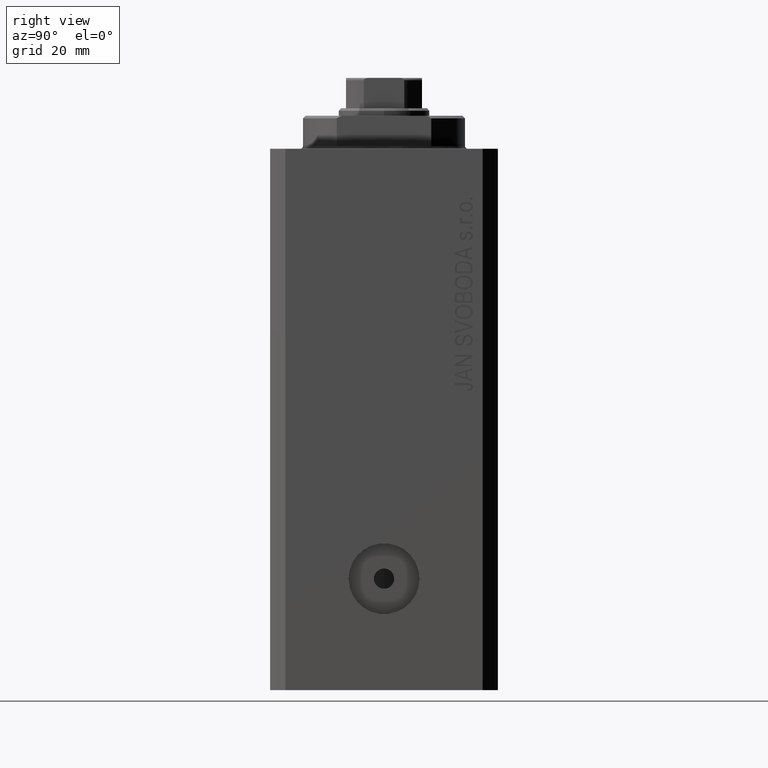
[diagram: clean part render]
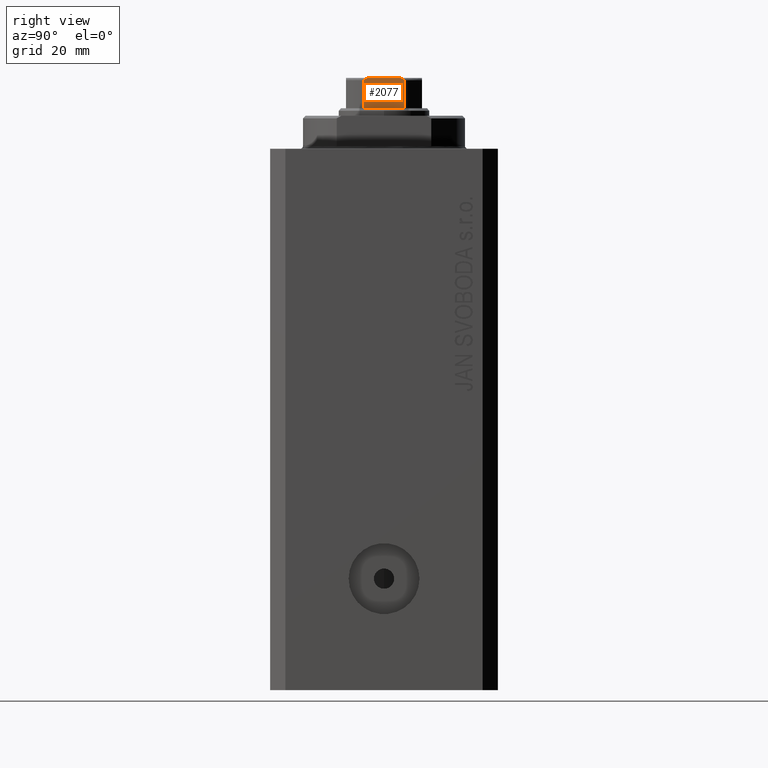
[diagram: same view with one face highlighted and labeled with its STEP entity id]
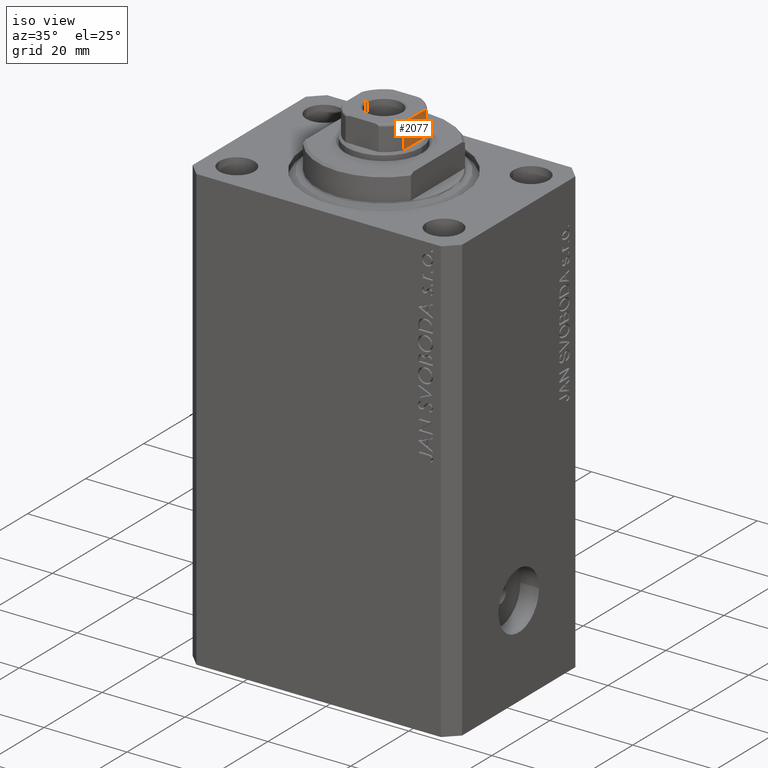
[diagram: same view with one face highlighted and labeled with its STEP entity id]
A machine part, right view. The second image highlights one B-rep face of the part: STEP entity #2077.
A second angle (iso view) of the same face is appended — the face is thin or edge-on in the first view.
In plain terms, the highlighted planar face has unit normal (-1, 0, 0).
Its self-contained STEP definition (entity closure, byte-faithful):
#128 = CARTESIAN_POINT ( 'NONE',  ( 7.500000000000000888, -2.783882181415009427, 114.1000000000000085 ) ) ;
#835 = CARTESIAN_POINT ( 'NONE',  ( 7.500000000000000888, 3.708875323752952369, 113.9493035205546221 ) ) ;
#2077 = ADVANCED_FACE ( 'NONE', ( #14429 ), #28177, .F. ) ;
#2808 = EDGE_CURVE ( 'NONE', #3693, #40312, #28294, .T. ) ;
#3693 = VERTEX_POINT ( 'NONE', #31661 ) ;
#5098 = CARTESIAN_POINT ( 'NONE',  ( 7.500000000000001776, -3.020030562295400234, 114.1000000000000227 ) ) ;
#5320 = CARTESIAN_POINT ( 'NONE',  ( 7.500000000000000000, -3.710689790367151630, 113.9481211817342512 ) ) ;
#6542 = CARTESIAN_POINT ( 'NONE',  ( 7.500000000000001776, 7.500000000000000000, 108.1000000000000085 ) ) ;
#6856 = CARTESIAN_POINT ( 'NONE',  ( 7.500000000000001776, 3.999999999999998224, 113.6000000000000085 ) ) ;
#8239 = CARTESIAN_POINT ( 'NONE',  ( 7.500000000000000888, -2.783882181415009427, 114.1000000000000085 ) ) ;
#8256 = LINE ( 'NONE', #42722, #38572 ) ;
#10987 = CARTESIAN_POINT ( 'NONE',  ( 7.500000000000000888, 3.999999999999998224, 113.6602639680043438 ) ) ;
#11436 = CARTESIAN_POINT ( 'NONE',  ( 7.500000000000001776, 3.254991323038174844, 114.0826902844315640 ) ) ;
#11583 = EDGE_LOOP ( 'NONE', ( #33132, #39877, #38199, #34753, #17020, #14203 ) ) ;
#11624 = CARTESIAN_POINT ( 'NONE',  ( 7.500000000000000000, -4.000000000000002665, 113.6000000000000085 ) ) ;
#13540 = DIRECTION ( 'NONE',  ( -1.000000000000000000, 1.156482317317871478E-16, 0.000000000000000000 ) ) ;
#13832 = VECTOR ( 'NONE', #44403, 1000.000000000000000 ) ;
#14203 = ORIENTED_EDGE ( 'NONE', *, *, #17718, .T. ) ;
#14344 = VERTEX_POINT ( 'NONE', #37015 ) ;
#14429 = FACE_OUTER_BOUND ( 'NONE', #11583, .T. ) ;
#14599 = CARTESIAN_POINT ( 'NONE',  ( 7.500000000000000888, 3.597188386589924569, 113.9905284339323970 ) ) ;
#16933 = LINE ( 'NONE', #24122, #13832 ) ;
#17020 = ORIENTED_EDGE ( 'NONE', *, *, #26875, .T. ) ;
#17718 = EDGE_CURVE ( 'NONE', #25666, #14344, #22792, .T. ) ;
#17971 = CARTESIAN_POINT ( 'NONE',  ( 7.500000000000000888, 3.976018255615929142, 113.7172619930099131 ) ) ;
#19060 = CARTESIAN_POINT ( 'NONE',  ( 7.499999999999999112, -3.975735230428941946, 113.7177304131977849 ) ) ;
#20307 = DIRECTION ( 'NONE',  ( -1.156482317317871478E-16, -1.000000000000000000, 0.000000000000000000 ) ) ;
#20945 = DIRECTION ( 'NONE',  ( 1.156482317317871478E-16, 1.000000000000000000, -0.000000000000000000 ) ) ;
#21077 = DIRECTION ( 'NONE',  ( -0.000000000000000000, -0.000000000000000000, 1.000000000000000000 ) ) ;
#22680 = EDGE_CURVE ( 'NONE', #24407, #40312, #31692, .T. ) ;
#22792 = B_SPLINE_CURVE_WITH_KNOTS ( 'NONE', 3,
 ( #42300, #10987, #17971, #31713, #24742, #835, #14599, #11436, #38474, #25184 ),
 .UNSPECIFIED., .F., .F.,
 ( 4, 2, 2, 2, 4 ),
 ( 0.000000000000000000, 0.0001779688448868775293, 0.0003559376897737542996, 0.0007118753795475305001, 0.001423750759095082901 ),
 .UNSPECIFIED. ) ;
#22957 = CARTESIAN_POINT ( 'NONE',  ( 7.500000000000000000, -4.000000000000002665, 113.6000000000000085 ) ) ;
#22971 = AXIS2_PLACEMENT_3D ( 'NONE', #38527, #13540, #20307 ) ;
#23489 = VERTEX_POINT ( 'NONE', #28360 ) ;
#24122 = CARTESIAN_POINT ( 'NONE',  ( 7.500000000000001776, 7.500000000000000000, 114.1000000000000085 ) ) ;
#24326 = LINE ( 'NONE', #6542, #39734 ) ;
#24407 = VERTEX_POINT ( 'NONE', #128 ) ;
#24742 = CARTESIAN_POINT ( 'NONE',  ( 7.500000000000000888, 3.858352854028593182, 113.8511795160315643 ) ) ;
#25184 = CARTESIAN_POINT ( 'NONE',  ( 7.500000000000000888, 2.783882181415007206, 114.1000000000000085 ) ) ;
#25666 = VERTEX_POINT ( 'NONE', #6856 ) ;
#26875 = EDGE_CURVE ( 'NONE', #23489, #25666, #8256, .T. ) ;
#28177 = PLANE ( 'NONE',  #22971 ) ;
#28294 = LINE ( 'NONE', #38640, #41668 ) ;
#28360 = CARTESIAN_POINT ( 'NONE',  ( 7.500000000000001776, 3.999999999999998224, 108.0999999999999943 ) ) ;
#31661 = CARTESIAN_POINT ( 'NONE',  ( 7.500000000000000000, -4.000000000000002665, 108.0999999999999943 ) ) ;
#31692 = B_SPLINE_CURVE_WITH_KNOTS ( 'NONE', 3,
 ( #8239, #5098, #39780, #32802, #5320, #39332, #42478, #19060, #39551, #11624 ),
 .UNSPECIFIED., .F., .F.,
 ( 4, 2, 2, 2, 4 ),
 ( 4.336808689942017736E-19, 0.0007049202178653984040, 0.001057380326798102593, 0.001233610381264454254, 0.001409840435730806999 ),
 .UNSPECIFIED. ) ;
#31713 = CARTESIAN_POINT ( 'NONE',  ( 7.500000000000001776, 3.904208668232356683, 113.8127813453749582 ) ) ;
#32802 = CARTESIAN_POINT ( 'NONE',  ( 7.499999999999999112, -3.598393151503776366, 113.9901219192740882 ) ) ;
#33132 = ORIENTED_EDGE ( 'NONE', *, *, #40913, .F. ) ;
#34753 = ORIENTED_EDGE ( 'NONE', *, *, #40085, .T. ) ;
#36418 = DIRECTION ( 'NONE',  ( -0.000000000000000000, -0.000000000000000000, 1.000000000000000000 ) ) ;
#37015 = CARTESIAN_POINT ( 'NONE',  ( 7.500000000000000888, 2.783882181415007206, 114.1000000000000085 ) ) ;
#38199 = ORIENTED_EDGE ( 'NONE', *, *, #2808, .F. ) ;
#38474 = CARTESIAN_POINT ( 'NONE',  ( 7.500000000000001776, 3.020011215871893029, 114.0999999999999943 ) ) ;
#38527 = CARTESIAN_POINT ( 'NONE',  ( 7.500000000000001776, 7.500000000000000000, 114.1000000000000085 ) ) ;
#38572 = VECTOR ( 'NONE', #36418, 1000.000000000000000 ) ;
#38640 = CARTESIAN_POINT ( 'NONE',  ( 7.500000000000000000, -4.000000000000002665, -0.001000000000001000089 ) ) ;
#39332 = CARTESIAN_POINT ( 'NONE',  ( 7.500000000000002665, -3.857502111569842018, 113.8517335996921389 ) ) ;
#39551 = CARTESIAN_POINT ( 'NONE',  ( 7.500000000000000000, -4.000000000000207834, 113.6603418620520785 ) ) ;
#39734 = VECTOR ( 'NONE', #20945, 1000.000000000000000 ) ;
#39780 = CARTESIAN_POINT ( 'NONE',  ( 7.500000000000004441, -3.255843148148204413, 114.0826237872687443 ) ) ;
#39877 = ORIENTED_EDGE ( 'NONE', *, *, #22680, .T. ) ;
#40085 = EDGE_CURVE ( 'NONE', #3693, #23489, #24326, .T. ) ;
#40312 = VERTEX_POINT ( 'NONE', #22957 ) ;
#40913 = EDGE_CURVE ( 'NONE', #24407, #14344, #16933, .T. ) ;
#41668 = VECTOR ( 'NONE', #21077, 1000.000000000000000 ) ;
#42300 = CARTESIAN_POINT ( 'NONE',  ( 7.500000000000001776, 3.999999999999998224, 113.6000000000000085 ) ) ;
#42478 = CARTESIAN_POINT ( 'NONE',  ( 7.500000000000001776, -3.904072061442343866, 113.8128705689080959 ) ) ;
#42722 = CARTESIAN_POINT ( 'NONE',  ( 7.500000000000001776, 3.999999999999998224, -0.001000000000001000089 ) ) ;
#44403 = DIRECTION ( 'NONE',  ( 1.156482317317871478E-16, 1.000000000000000000, -0.000000000000000000 ) ) ;